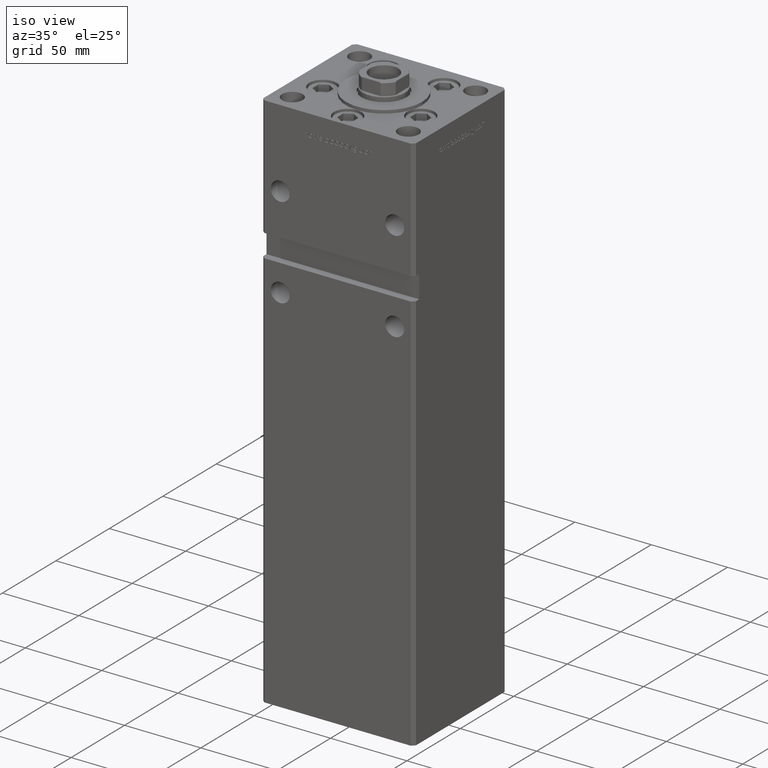
[diagram: clean part render]
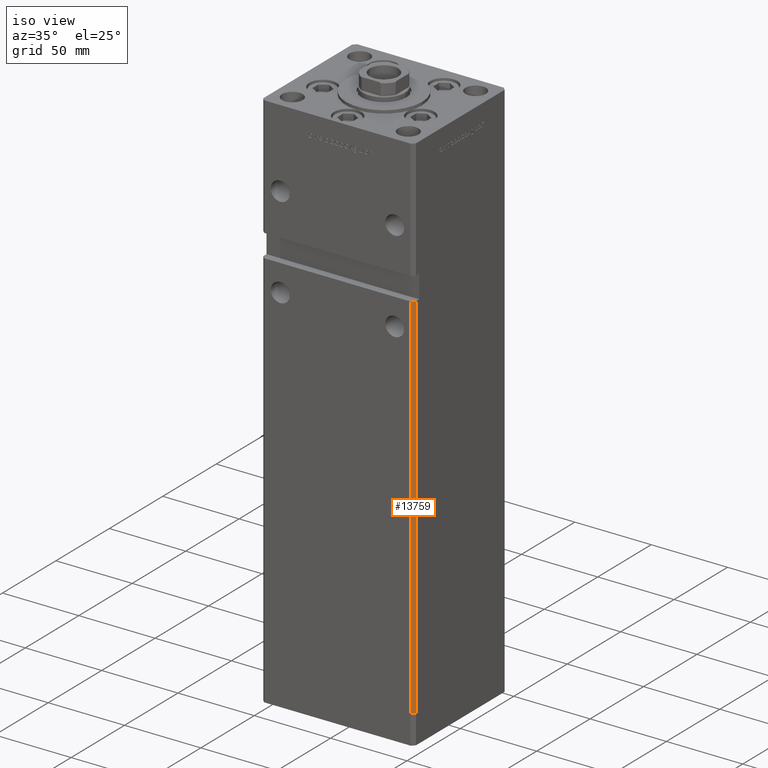
[diagram: same view with one face highlighted and labeled with its STEP entity id]
A machine part, iso view. The second image highlights one B-rep face of the part: STEP entity #13759.
In plain terms, the highlighted planar face has unit normal (0.7071, -0.7071, 0).
Its self-contained STEP definition (entity closure, byte-faithful):
#553 = CARTESIAN_POINT ( 'NONE',  ( 49.99999999999998579, -41.49999999999999289, 244.0000000000000000 ) ) ;
#1154 = DIRECTION ( 'NONE',  ( 0.7071067811865474617, 0.7071067811865474617, 0.000000000000000000 ) ) ;
#2912 = LINE ( 'NONE', #14509, #29283 ) ;
#3183 = LINE ( 'NONE', #30938, #15434 ) ;
#5740 = DIRECTION ( 'NONE',  ( 0.7071067811865475727, -0.7071067811865475727, 0.000000000000000000 ) ) ;
#7537 = EDGE_CURVE ( 'NONE', #19170, #34557, #2912, .T. ) ;
#7794 = DIRECTION ( 'NONE',  ( -0.7071067811865474617, -0.7071067811865474617, 0.000000000000000000 ) ) ;
#7934 = VERTEX_POINT ( 'NONE', #15504 ) ;
#8265 = EDGE_CURVE ( 'NONE', #19170, #50201, #3183, .T. ) ;
#9692 = ORIENTED_EDGE ( 'NONE', *, *, #21099, .F. ) ;
#12607 = VECTOR ( 'NONE', #7794, 1000.000000000000114 ) ;
#13759 = ADVANCED_FACE ( 'NONE', ( #29718 ), #38845, .T. ) ;
#14509 = CARTESIAN_POINT ( 'NONE',  ( 49.99999999999998579, -41.49999999999999289, 244.0000000000000000 ) ) ;
#15434 = VECTOR ( 'NONE', #31204, 1000.000000000000000 ) ;
#15504 = CARTESIAN_POINT ( 'NONE',  ( 49.99999999999998579, -41.49999999999999289, 0.000000000000000000 ) ) ;
#18828 = DIRECTION ( 'NONE',  ( 0.7071067811865474617, 0.7071067811865474617, 0.000000000000000000 ) ) ;
#19170 = VERTEX_POINT ( 'NONE', #28182 ) ;
#19373 = CARTESIAN_POINT ( 'NONE',  ( 49.99999999999998579, -41.49999999999999289, 318.5000000000000000 ) ) ;
#21099 = EDGE_CURVE ( 'NONE', #34557, #7934, #48399, .T. ) ;
#27444 = EDGE_LOOP ( 'NONE', ( #29706, #39131, #44966, #9692 ) ) ;
#28182 = CARTESIAN_POINT ( 'NONE',  ( 47.99999999999998579, -43.50000000000000000, 244.0000000000000000 ) ) ;
#29283 = VECTOR ( 'NONE', #18828, 1000.000000000000114 ) ;
#29706 = ORIENTED_EDGE ( 'NONE', *, *, #7537, .F. ) ;
#29718 = FACE_OUTER_BOUND ( 'NONE', #27444, .T. ) ;
#29977 = CARTESIAN_POINT ( 'NONE',  ( 49.99999999999998579, -41.49999999999999289, 318.5000000000000000 ) ) ;
#30465 = CARTESIAN_POINT ( 'NONE',  ( 47.99999999999998579, -43.50000000000000000, 0.000000000000000000 ) ) ;
#30938 = CARTESIAN_POINT ( 'NONE',  ( 47.99999999999998579, -43.50000000000000000, 318.5000000000000000 ) ) ;
#31204 = DIRECTION ( 'NONE',  ( -0.000000000000000000, -0.000000000000000000, -1.000000000000000000 ) ) ;
#32300 = CARTESIAN_POINT ( 'NONE',  ( 49.99999999999998579, -41.49999999999999289, 0.000000000000000000 ) ) ;
#34557 = VERTEX_POINT ( 'NONE', #553 ) ;
#35778 = DIRECTION ( 'NONE',  ( -0.000000000000000000, -0.000000000000000000, -1.000000000000000000 ) ) ;
#36393 = VECTOR ( 'NONE', #35778, 1000.000000000000000 ) ;
#38845 = PLANE ( 'NONE',  #41360 ) ;
#39131 = ORIENTED_EDGE ( 'NONE', *, *, #8265, .T. ) ;
#39851 = LINE ( 'NONE', #32300, #12607 ) ;
#41360 = AXIS2_PLACEMENT_3D ( 'NONE', #29977, #5740, #1154 ) ;
#43099 = EDGE_CURVE ( 'NONE', #7934, #50201, #39851, .T. ) ;
#44966 = ORIENTED_EDGE ( 'NONE', *, *, #43099, .F. ) ;
#48399 = LINE ( 'NONE', #19373, #36393 ) ;
#50201 = VERTEX_POINT ( 'NONE', #30465 ) ;